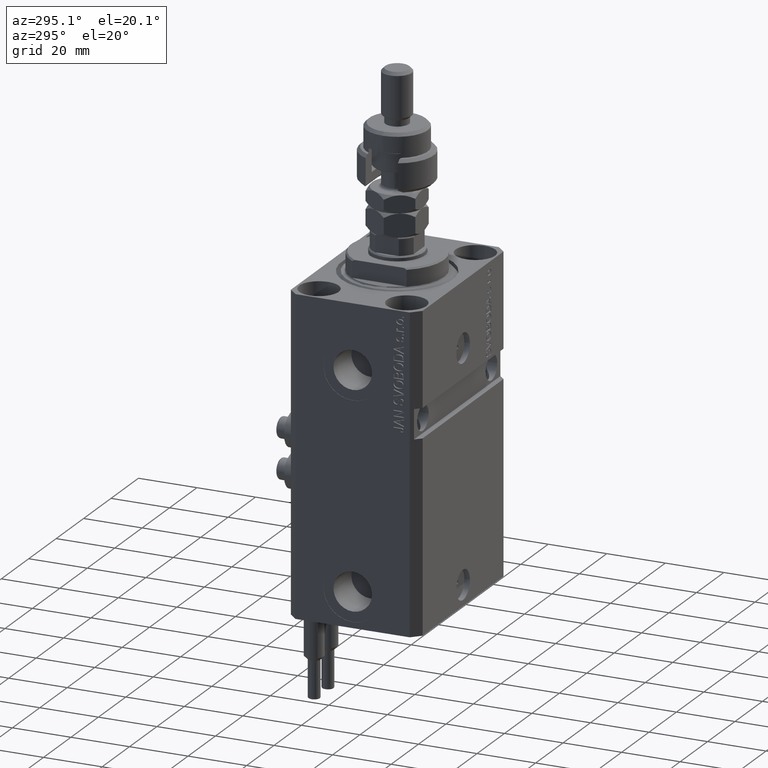
[diagram: clean part render]
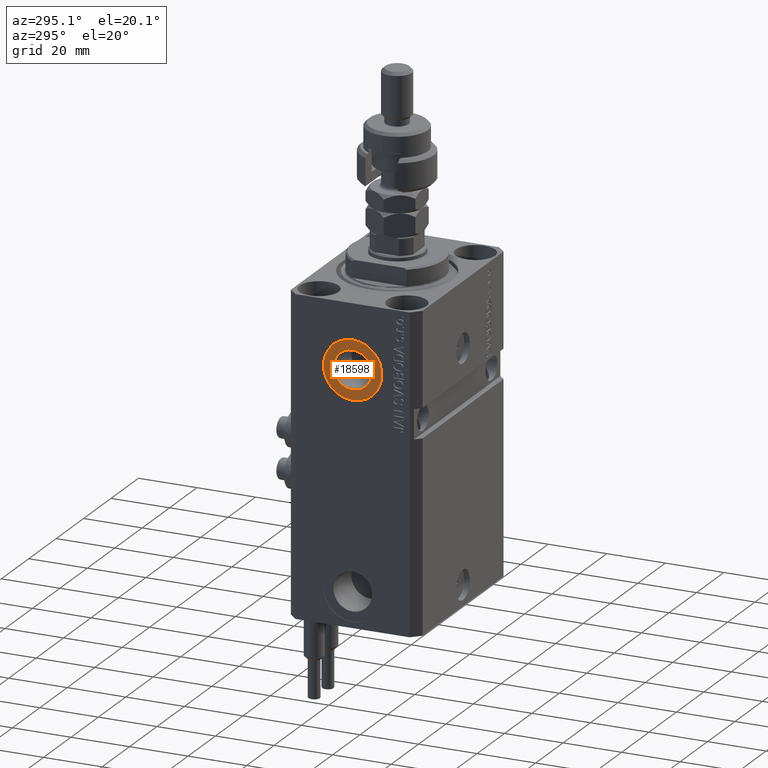
[diagram: same view with one face highlighted and labeled with its STEP entity id]
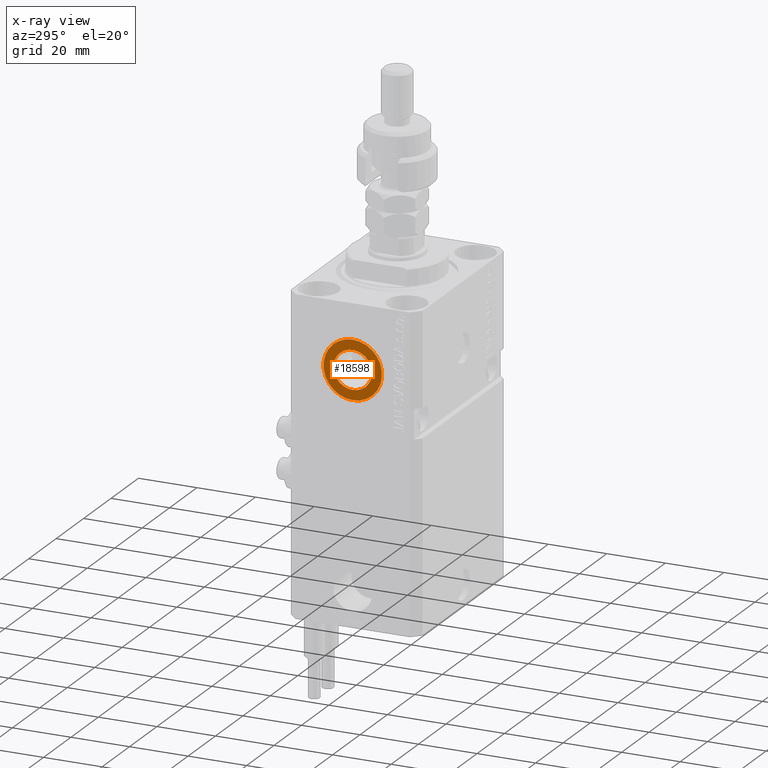
[diagram: x-ray of the same camera — body ghosted, the highlighted face saturated]
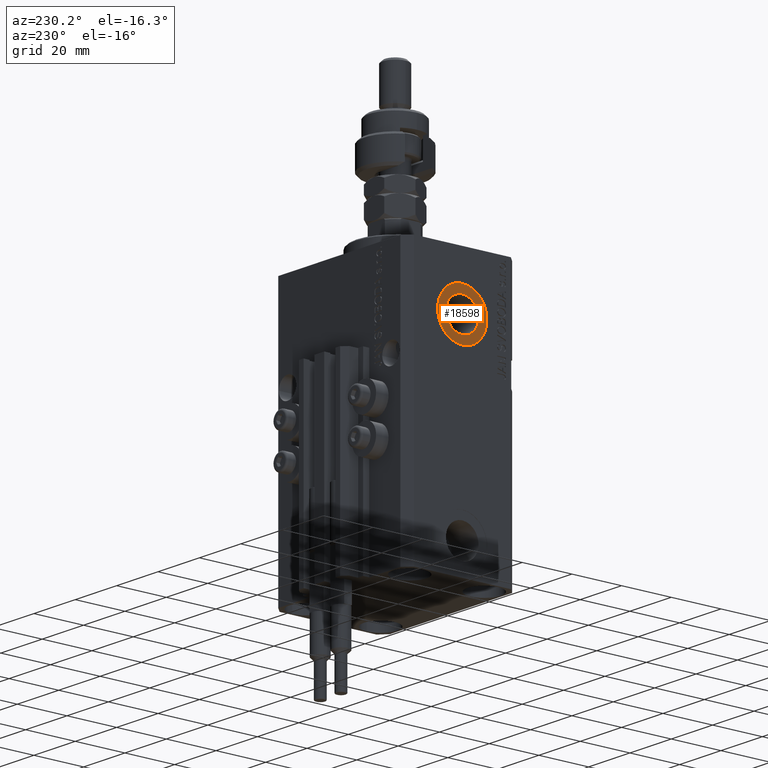
[diagram: same view with one face highlighted and labeled with its STEP entity id]
A machine part, auxiliary view. The second image highlights one B-rep face of the part: STEP entity #18598.
The next image is the same camera in x-ray: the body ghosted, the highlighted face saturated — about 0% of this face is hidden behind the body in this view.
A second angle (auxiliary view) of the same face is appended — the face is thin or edge-on in the first view.
In plain terms, the highlighted planar face has unit normal (-1, 0, 0).
Its self-contained STEP definition (entity closure, byte-faithful):
#506 = CARTESIAN_POINT ( 'NONE',  ( -32.39999999999650271, 8.058175938389579572E-16, -28.57999999999999829 ) ) ;
#1750 = EDGE_CURVE ( 'NONE', #36636, #42755, #30194, .T. ) ;
#1937 = CARTESIAN_POINT ( 'NONE',  ( -32.39999999999650271, 0.000000000000000000, -22.00000000000000000 ) ) ;
#1982 = VERTEX_POINT ( 'NONE', #9036 ) ;
#3145 = ORIENTED_EDGE ( 'NONE', *, *, #30644, .F. ) ;
#6165 = PLANE ( 'NONE',  #42851 ) ;
#9036 = CARTESIAN_POINT ( 'NONE',  ( -32.39999999999650271, 1.224646799147353059E-15, -32.00000000000000000 ) ) ;
#11382 = EDGE_LOOP ( 'NONE', ( #46556, #3145 ) ) ;
#13873 = ORIENTED_EDGE ( 'NONE', *, *, #33486, .T. ) ;
#14692 = CARTESIAN_POINT ( 'NONE',  ( -32.39999999999650271, 0.000000000000000000, -22.00000000000000000 ) ) ;
#14739 = DIRECTION ( 'NONE',  ( -1.000000000000000000, 0.000000000000000000, 0.000000000000000000 ) ) ;
#14988 = DIRECTION ( 'NONE',  ( 0.000000000000000000, 0.000000000000000000, 1.000000000000000000 ) ) ;
#15257 = VERTEX_POINT ( 'NONE', #31394 ) ;
#15300 = DIRECTION ( 'NONE',  ( 0.000000000000000000, 0.000000000000000000, 1.000000000000000000 ) ) ;
#18169 = CIRCLE ( 'NONE', #34564, 10.00000000000000000 ) ;
#18598 = ADVANCED_FACE ( 'NONE', ( #38449, #22769 ), #6165, .T. ) ;
#19063 = AXIS2_PLACEMENT_3D ( 'NONE', #1937, #25548, #37873 ) ;
#22769 = FACE_OUTER_BOUND ( 'NONE', #24689, .T. ) ;
#23082 = ORIENTED_EDGE ( 'NONE', *, *, #30851, .T. ) ;
#24689 = EDGE_LOOP ( 'NONE', ( #13873, #23082 ) ) ;
#25548 = DIRECTION ( 'NONE',  ( -1.000000000000000000, 0.000000000000000000, 0.000000000000000000 ) ) ;
#28822 = AXIS2_PLACEMENT_3D ( 'NONE', #32314, #34018, #30166 ) ;
#30120 = DIRECTION ( 'NONE',  ( -1.000000000000000000, 0.000000000000000000, 0.000000000000000000 ) ) ;
#30166 = DIRECTION ( 'NONE',  ( 0.000000000000000000, 0.000000000000000000, 1.000000000000000000 ) ) ;
#30194 = CIRCLE ( 'NONE', #45796, 6.579999999999999183 ) ;
#30644 = EDGE_CURVE ( 'NONE', #42755, #36636, #35336, .T. ) ;
#30851 = EDGE_CURVE ( 'NONE', #1982, #15257, #18169, .T. ) ;
#31394 = CARTESIAN_POINT ( 'NONE',  ( -32.39999999999650271, 0.000000000000000000, -11.99999999999999822 ) ) ;
#32314 = CARTESIAN_POINT ( 'NONE',  ( -32.39999999999650271, 0.000000000000000000, -22.00000000000000000 ) ) ;
#33486 = EDGE_CURVE ( 'NONE', #15257, #1982, #38761, .T. ) ;
#34018 = DIRECTION ( 'NONE',  ( -1.000000000000000000, 0.000000000000000000, 0.000000000000000000 ) ) ;
#34564 = AXIS2_PLACEMENT_3D ( 'NONE', #50218, #14739, #14988 ) ;
#34585 = CARTESIAN_POINT ( 'NONE',  ( -32.39999999999650271, 0.000000000000000000, -22.00000000000000000 ) ) ;
#35336 = CIRCLE ( 'NONE', #28822, 6.579999999999999183 ) ;
#36636 = VERTEX_POINT ( 'NONE', #40659 ) ;
#37873 = DIRECTION ( 'NONE',  ( 0.000000000000000000, 0.000000000000000000, 1.000000000000000000 ) ) ;
#38449 = FACE_BOUND ( 'NONE', #11382, .T. ) ;
#38761 = CIRCLE ( 'NONE', #19063, 10.00000000000000000 ) ;
#40659 = CARTESIAN_POINT ( 'NONE',  ( -32.39999999999650271, 0.000000000000000000, -15.41999999999999993 ) ) ;
#42755 = VERTEX_POINT ( 'NONE', #506 ) ;
#42824 = DIRECTION ( 'NONE',  ( -1.000000000000000000, 0.000000000000000000, 0.000000000000000000 ) ) ;
#42851 = AXIS2_PLACEMENT_3D ( 'NONE', #34585, #42824, #15300 ) ;
#45556 = DIRECTION ( 'NONE',  ( 0.000000000000000000, 0.000000000000000000, 1.000000000000000000 ) ) ;
#45796 = AXIS2_PLACEMENT_3D ( 'NONE', #14692, #30120, #45556 ) ;
#46556 = ORIENTED_EDGE ( 'NONE', *, *, #1750, .F. ) ;
#50218 = CARTESIAN_POINT ( 'NONE',  ( -32.39999999999650271, 0.000000000000000000, -22.00000000000000000 ) ) ;